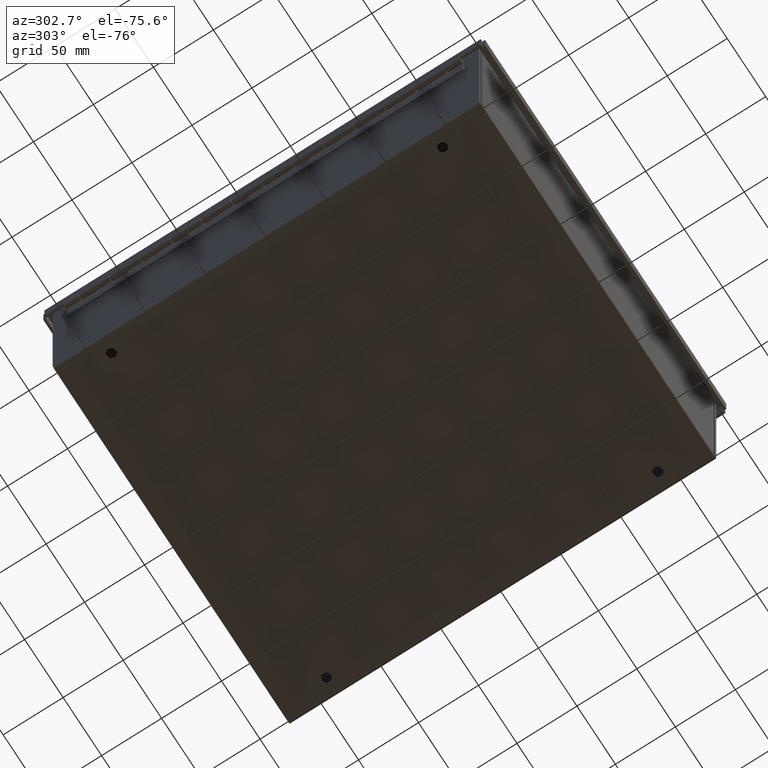
[diagram: clean part render]
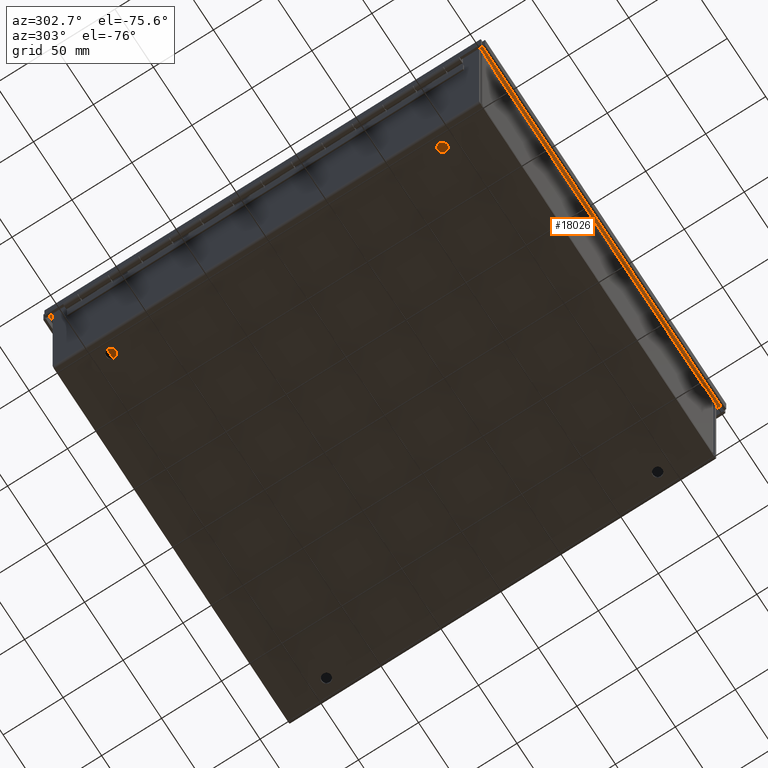
[diagram: same view with one face highlighted and labeled with its STEP entity id]
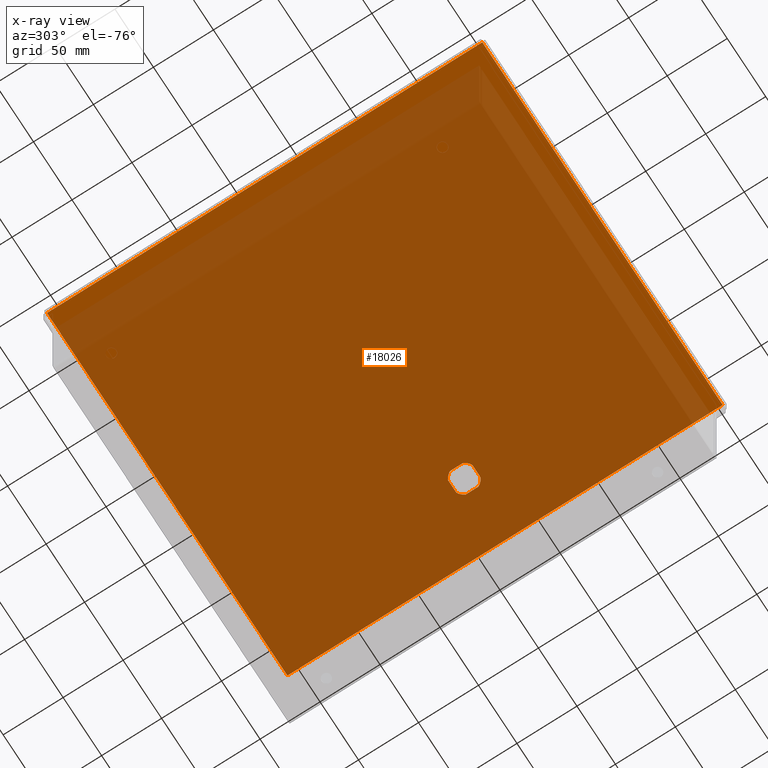
[diagram: x-ray of the same camera — body ghosted, the highlighted face saturated]
A machine part, auxiliary view. The second image highlights one B-rep face of the part: STEP entity #18026.
The next image is the same camera in x-ray: the body ghosted, the highlighted face saturated — about 93% of this face is hidden behind the body in this view.
In plain terms, the highlighted planar face has unit normal (-0, -0, 1).
Its self-contained STEP definition (entity closure, byte-faithful):
#16670=CARTESIAN_POINT('',(4.462000000288211,0.213562049768246,-3.278218E-017));
#16671=VERTEX_POINT('',#16670);
#16672=CARTESIAN_POINT('',(4.276124100708485,0.39949999912418,-3.278218E-017));
#16673=VERTEX_POINT('',#16672);
#16674=CARTESIAN_POINT('',(4.062475169107493,0.000046454861229,0.0));
#16675=DIRECTION('',(0.0,0.0,1.0));
#16676=DIRECTION('',(0.881953269717879,0.471336854101122,0.0));
#16677=AXIS2_PLACEMENT_3D('',#16674,#16675,#16676);
#16678=CIRCLE('',#16677,0.452999999998321);
#16679=EDGE_CURVE('',#16671,#16673,#16678,.T.);
#16712=CARTESIAN_POINT('',(3.84899999964172,0.399499999123981,-3.278218E-017));
#16713=VERTEX_POINT('',#16712);
#16714=CARTESIAN_POINT('',(4.276124100708485,0.39949999912418,0.0));
#16715=DIRECTION('',(-1.0,-4.670939E-013,0.0));
#16716=VECTOR('',#16715,0.427124101066764);
#16717=LINE('',#16714,#16716);
#16718=EDGE_CURVE('',#16673,#16713,#16717,.T.);
#16743=CARTESIAN_POINT('',(3.662999999641721,0.213562050432028,-3.278218E-017));
#16744=VERTEX_POINT('',#16743);
#16745=CARTESIAN_POINT('',(4.062475176932128,-0.000046429566488,0.0));
#16746=DIRECTION('',(0.0,0.0,1.0));
#16747=DIRECTION('',(-0.471247631989401,0.882000946339845,0.0));
#16748=AXIS2_PLACEMENT_3D('',#16745,#16746,#16747);
#16749=CIRCLE('',#16748,0.452999999998321);
#16750=EDGE_CURVE('',#16713,#16744,#16749,.T.);
#16776=CARTESIAN_POINT('',(3.66299999964192,-0.213562050665658,-3.278218E-017));
#16777=VERTEX_POINT('',#16776);
#16778=CARTESIAN_POINT('',(3.662999999641722,0.213562050432028,0.0));
#16779=DIRECTION('',(4.668340E-013,-1.0,0.0));
#16780=VECTOR('',#16779,0.427124101097686);
#16781=LINE('',#16778,#16780);
#16782=EDGE_CURVE('',#16744,#16777,#16781,.T.);
#16807=CARTESIAN_POINT('',(3.84893794910403,-0.39950000090799,-3.278218E-017));
#16808=VERTEX_POINT('',#16807);
#16809=CARTESIAN_POINT('',(4.062500000689566,-7.564810E-010,0.0));
#16810=DIRECTION('',(0.0,0.0,1.0));
#16811=DIRECTION('',(-0.881898457062089,-0.471439403774765,0.0));
#16812=AXIS2_PLACEMENT_3D('',#16809,#16810,#16811);
#16813=CIRCLE('',#16812,0.452999999998321);
#16814=EDGE_CURVE('',#16777,#16808,#16813,.T.);
#16840=CARTESIAN_POINT('',(4.276062050170794,-0.399500000907791,-3.278218E-017));
#16841=VERTEX_POINT('',#16840);
#16842=CARTESIAN_POINT('',(3.84893794910403,-0.399500000907991,0.0));
#16843=DIRECTION('',(1.0,4.668340E-013,0.0));
#16844=VECTOR('',#16843,0.427124101066765);
#16845=LINE('',#16842,#16844);
#16846=EDGE_CURVE('',#16808,#16841,#16845,.T.);
#16871=CARTESIAN_POINT('',(4.462000000288411,-0.213562051329441,-3.278218E-017));
#16872=VERTEX_POINT('',#16871);
#16873=CARTESIAN_POINT('',(4.0625,1.398706E-015,0.0));
#16874=DIRECTION('',(0.0,0.0,1.0));
#16875=DIRECTION('',(0.471439404352286,-0.881898456753362,0.0));
#16876=AXIS2_PLACEMENT_3D('',#16873,#16874,#16875);
#16877=CIRCLE('',#16876,0.452999999998321);
#16878=EDGE_CURVE('',#16841,#16872,#16877,.T.);
#16904=CARTESIAN_POINT('',(4.462000000288411,-0.213562051329441,0.0));
#16905=DIRECTION('',(-4.657943E-013,1.0,0.0));
#16906=VECTOR('',#16905,0.427124101097686);
#16907=LINE('',#16904,#16906);
#16908=EDGE_CURVE('',#16872,#16671,#16907,.T.);
#16936=CARTESIAN_POINT('',(-6.14475,-7.144750000000002,-2.185478E-017));
#16937=VERTEX_POINT('',#16936);
#16948=CARTESIAN_POINT('',(6.144750000000002,-7.14475,-3.278218E-017));
#16949=VERTEX_POINT('',#16948);
#16950=CARTESIAN_POINT('',(6.144750000000002,-7.14475,0.0));
#16951=DIRECTION('',(-1.0,0.0,0.0));
#16952=VECTOR('',#16951,12.289500000000002);
#16953=LINE('',#16950,#16952);
#16954=EDGE_CURVE('',#16949,#16937,#16953,.T.);
#17216=CARTESIAN_POINT('',(-6.144750000000001,7.144750000000003,-2.185478E-017));
#17217=VERTEX_POINT('',#17216);
#17228=CARTESIAN_POINT('',(-6.144750000000001,-7.144750000000002,0.0));
#17229=DIRECTION('',(0.0,1.0,0.0));
#17230=VECTOR('',#17229,14.289500000000004);
#17231=LINE('',#17228,#17230);
#17232=EDGE_CURVE('',#16937,#17217,#17231,.T.);
#17487=CARTESIAN_POINT('',(6.144750000000001,7.144750000000003,-3.278218E-017));
#17488=VERTEX_POINT('',#17487);
#17499=CARTESIAN_POINT('',(-6.144750000000001,7.144750000000003,0.0));
#17500=DIRECTION('',(1.0,0.0,0.0));
#17501=VECTOR('',#17500,12.2895);
#17502=LINE('',#17499,#17501);
#17503=EDGE_CURVE('',#17217,#17488,#17502,.T.);
#17768=CARTESIAN_POINT('',(6.144750000000001,7.144750000000004,0.0));
#17769=DIRECTION('',(0.0,-1.0,0.0));
#17770=VECTOR('',#17769,14.289500000000004);
#17771=LINE('',#17768,#17770);
#17772=EDGE_CURVE('',#17488,#16949,#17771,.T.);
#18005=CARTESIAN_POINT('',(0.0,1.884957E-015,0.0));
#18006=DIRECTION('',(0.0,0.0,1.0));
#18007=DIRECTION('',(1.0,0.0,0.0));
#18008=AXIS2_PLACEMENT_3D('',#18005,#18006,#18007);
#18009=PLANE('',#18008);
#18010=ORIENTED_EDGE('',*,*,#16954,.T.);
#18011=ORIENTED_EDGE('',*,*,#17232,.T.);
#18012=ORIENTED_EDGE('',*,*,#17503,.T.);
#18013=ORIENTED_EDGE('',*,*,#17772,.T.);
#18014=EDGE_LOOP('',(#18010,#18011,#18012,#18013));
#18015=FACE_OUTER_BOUND('',#18014,.T.);
#18016=ORIENTED_EDGE('',*,*,#16679,.T.);
#18017=ORIENTED_EDGE('',*,*,#16718,.T.);
#18018=ORIENTED_EDGE('',*,*,#16750,.T.);
#18019=ORIENTED_EDGE('',*,*,#16782,.T.);
#18020=ORIENTED_EDGE('',*,*,#16814,.T.);
#18021=ORIENTED_EDGE('',*,*,#16846,.T.);
#18022=ORIENTED_EDGE('',*,*,#16878,.T.);
#18023=ORIENTED_EDGE('',*,*,#16908,.T.);
#18024=EDGE_LOOP('',(#18016,#18017,#18018,#18019,#18020,#18021,#18022,#18023));
#18025=FACE_BOUND('',#18024,.T.);
#18026=ADVANCED_FACE('',(#18015,#18025),#18009,.F.);